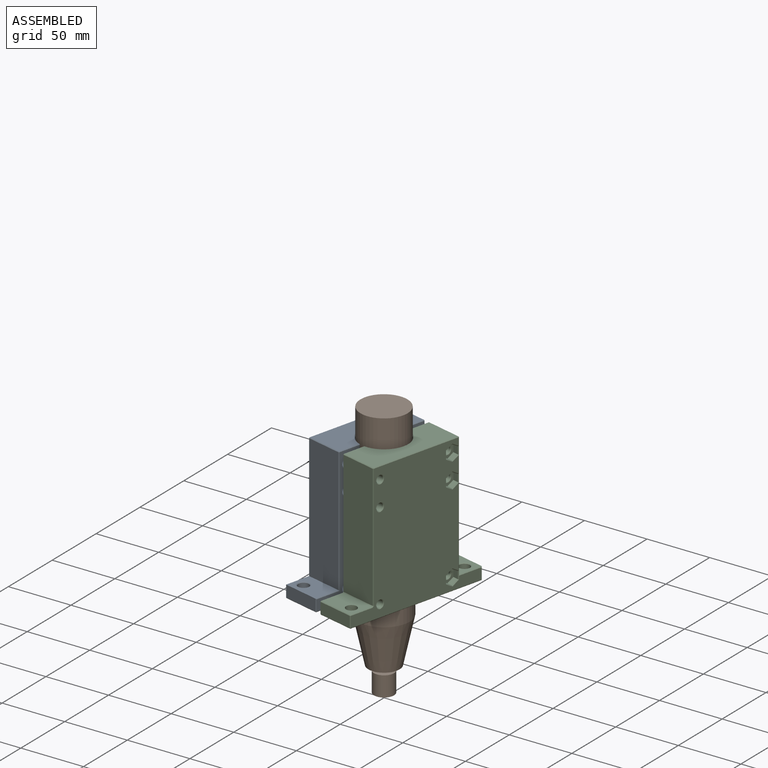
[diagram: assembled view]
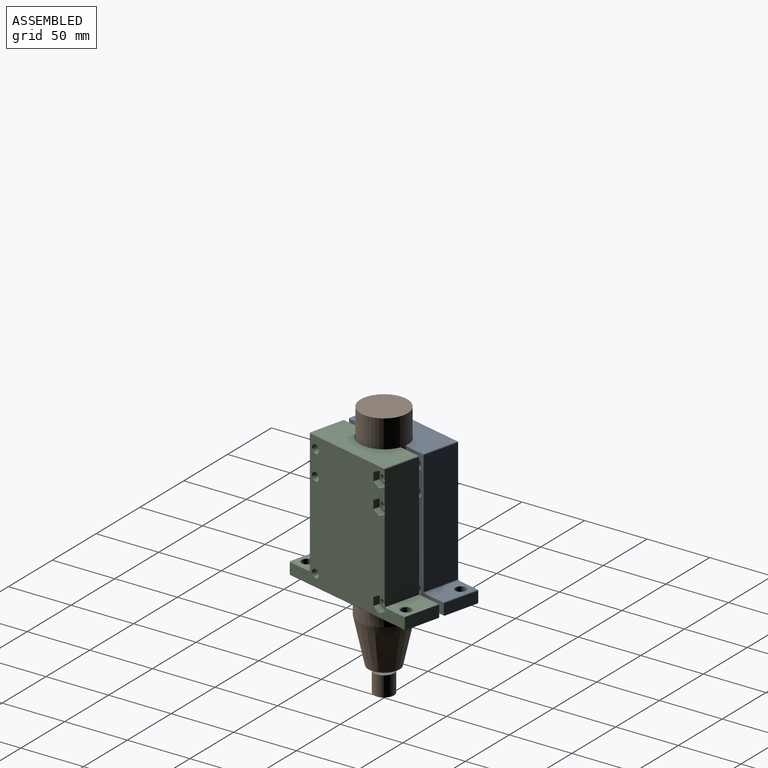
[diagram: assembled view, second angle]
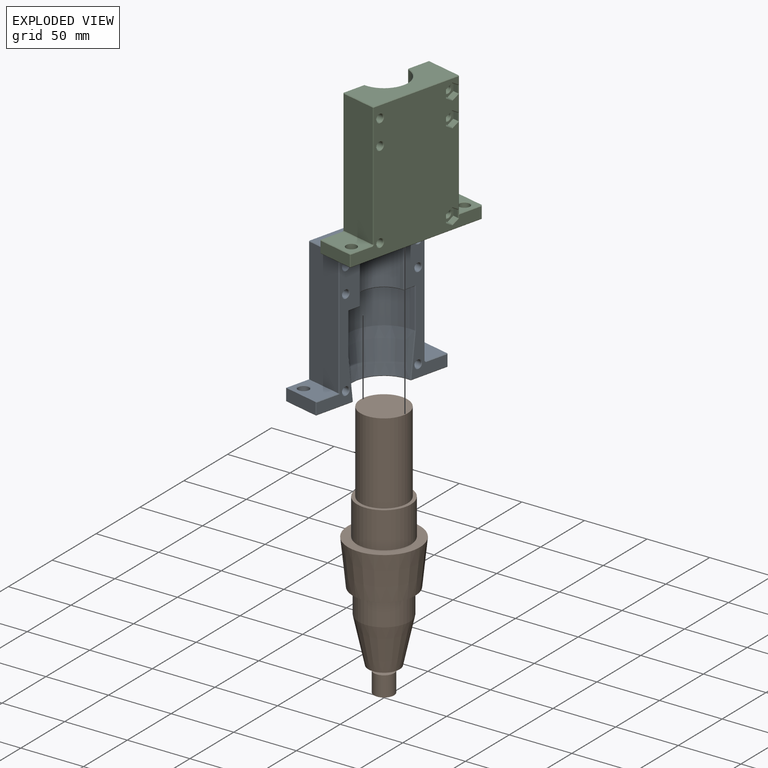
[diagram: exploded view]
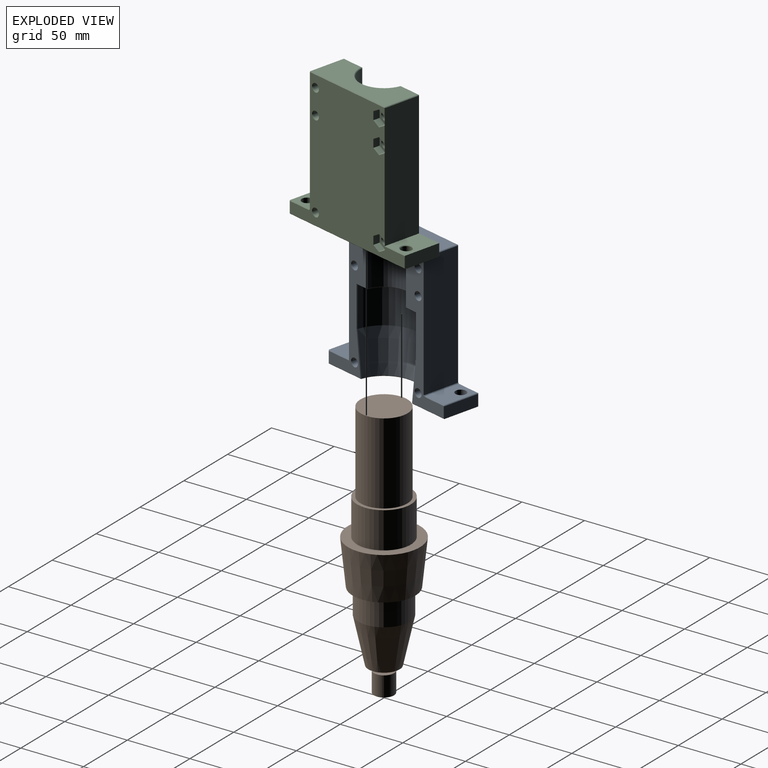
[diagram: exploded view, second angle]
ASSEMBLY  parts=3 mates=5
PART A: 130 faces, bbox 111.2x115x30 mm
  f0: plane 109x37.66mm, normal (0,0,1), area 1389.5mm2, adj f75,f76,f83,f89,f90,f99,f100,f105
  f1: plane 99.5x29mm, normal (0,1,0), area 2885.5mm2, adj f43,f80,f93,f94
  f2: plane 99x29mm, normal (0,-1,0), area 2871mm2, adj f73,f74,f88,f89
  f3: plane 114x109mm, normal (0,0,-1), area 7988.6mm2, adj f45,f46,f47,f48,f49,f51,f52,f53
  f4: cylinder r=2.9mm len=24mm, axis (0,0,1), area 436.7mm2, adj f117,f124
  f5: cylinder r=2.9mm len=24mm, axis (0,0,1), area 436.7mm2, adj f116,f125
  f6: cylinder r=2.9mm len=24mm, axis (0,0,1), area 436.7mm2, adj f115,f126
  f7: plane 74x29mm, normal (1,0,0), area 1645.9mm2, adj f81,f88,f94,f99,f102,f103
  f8: plane 114x29mm, normal (-1,0,0), area 2254.3mm2, adj f52,f77,f78,f90,f91,f92,f119,f120
  f9: plane 109x37.66mm, normal (0,0,1), area 1389mm2, adj f79,f86,f92,f93,f101,f102,f106,f110
  f10: cone r=29mm half-angle=6.3deg, axis (1,0,0), area 2778.1mm2, adj f11,f91,f100,f101
  f11: cylinder r=29mm len=57.79mm, axis (1,0,0), area 2758mm2, adj f10,f12,f105,f106,f109,f110
  f12: plane 57.78x26.5mm, normal (-1,0,0), area 676.2mm2, adj f11,f109,f110,f114
  f13: cylinder r=19mm len=42mm, axis (1,0,0), area 2301.8mm2, adj f103,f108,f111,f114
  f14: cylinder r=2.9mm len=29mm, axis (0,0,1), area 527.6mm2, adj f123,f129
  f15: cylinder r=2.9mm len=29mm, axis (0,0,1), area 527.6mm2, adj f121,f127
  f16: cylinder r=2.9mm len=29mm, axis (0,0,1), area 527.6mm2, adj f122,f128
  f17: plane 11.89x10.3mm, normal (0,0,-1), area 55.7mm2, adj f18,f19,f20,f21,f22,f23,f115
  f18: plane 5.15x4.5mm, normal (-0.87,0.5,0), area 26.8mm2, adj f17,f19,f23,f59
  f19: plane 5.95x4.5mm, normal (0,1,0), area 26.8mm2, adj f17,f18,f20,f48
  f20: plane 5.15x4.5mm, normal (0.87,0.5,0), area 26.8mm2, adj f17,f19,f21,f58
  f21: plane 5.15x4.5mm, normal (0.87,-0.5,0), area 26.8mm2, adj f17,f20,f22,f70
  f22: plane 5.95x4.5mm, normal (0,-1,0), area 26.8mm2, adj f17,f21,f23,f71
  f23: plane 5.15x4.5mm, normal (-0.87,-0.5,0), area 26.8mm2, adj f17,f18,f22,f72
  f24: plane 11.89x10.3mm, normal (0,0,-1), area 55.7mm2, adj f25,f26,f27,f28,f29,f30,f116
  f25: plane 5.15x4.5mm, normal (0.87,0.5,0), area 26.8mm2, adj f24,f26,f30,f56
  f26: plane 5.15x4.5mm, normal (0.87,-0.5,0), area 26.8mm2, adj f24,f25,f27,f67
  f27: plane 5.95x4.5mm, normal (0,-1,0), area 26.8mm2, adj f24,f26,f28,f68
  f28: plane 5.15x4.5mm, normal (-0.87,-0.5,0), area 26.8mm2, adj f24,f27,f29,f69
  f29: plane 5.15x4.5mm, normal (-0.87,0.5,0), area 26.8mm2, adj f24,f28,f30,f57
  f30: plane 5.95x4.5mm, normal (0,1,0), area 26.8mm2, adj f24,f25,f29,f47
  f31: plane 11.89x10.3mm, normal (0,0,-1), area 55.7mm2, adj f32,f33,f34,f35,f36,f37,f117
  f32: plane 5.15x4.5mm, normal (0.87,0.5,0), area 26.8mm2, adj f31,f33,f37,f45
  f33: plane 5.15x4.5mm, normal (0.87,-0.5,0), area 26.8mm2, adj f31,f32,f34,f54
  f34: plane 5.95x4.5mm, normal (0,-1,0), area 26.8mm2, adj f31,f33,f35,f65
  f35: plane 5.15x4.5mm, normal (-0.87,-0.5,0), area 26.8mm2, adj f31,f34,f36,f66
  f36: plane 5.15x4.5mm, normal (-0.87,0.5,0), area 26.8mm2, adj f31,f35,f37,f55
  f37: plane 5.95x4.5mm, normal (0,1,0), area 26.8mm2, adj f31,f32,f36,f46
  f38: plane 29x9mm, normal (0,-1,0), area 261mm2, adj f50,f51,f76,f77
  f39: cylinder r=4.3mm len=9.5mm, axis (-1,0,0), area 256.7mm2, adj f40,f120
  f40: plane 29x19mm, normal (1,0,0), area 492.9mm2, adj f39,f49,f50,f74,f75
  f41: plane 29x9.5mm, normal (0,1,0), area 275.5mm2, adj f43,f53,f78,f79
  f42: cylinder r=4.3mm len=9mm, axis (-1,0,0), area 243.2mm2, adj f118,f119
  f43: plane 29x20mm, normal (1,0,0), area 507.6mm2, adj f1,f41,f64,f86,f118
  f44: plane 0.5x0.5mm, normal (0.58,-0.58,-0.58), area 0.2mm2, adj f49,f50,f51
  f45: plane 5.65x3.55mm, normal (0.61,0.35,-0.71), area 4.4mm2, adj f3,f32,f46,f54
  f46: plane 6.52x0.5mm, normal (0,0.71,-0.71), area 4.4mm2, adj f3,f37,f45,f55
  f47: plane 6.52x0.5mm, normal (0,0.71,-0.71), area 4.4mm2, adj f3,f30,f56,f57
  f48: plane 6.52x0.5mm, normal (0,0.71,-0.71), area 4.4mm2, adj f3,f19,f58,f59
  f49: plane 19x0.5mm, normal (0.71,0,-0.71), area 13.4mm2, adj f3,f40,f44,f60
  f50: plane 29x0.5mm, normal (0.71,-0.71,0), area 20.5mm2, adj f38,f40,f44,f61
  f51: plane 9x0.5mm, normal (0,-0.71,-0.71), area 6.4mm2, adj f3,f38,f44,f62
  f52: plane 114x0.5mm, normal (-0.71,0,-0.71), area 80.6mm2, adj f3,f8,f62,f63
  f53: plane 9.5x0.5mm, normal (0,0.71,-0.71), area 6.5mm2, adj f3,f41,f63,f64
  f54: plane 5.65x3.55mm, normal (0.61,-0.35,-0.71), area 4.4mm2, adj f3,f33,f45,f65
  f55: plane 5.65x3.55mm, normal (-0.61,0.35,-0.71), area 4.4mm2, adj f3,f36,f46,f66
  f56: plane 5.65x3.55mm, normal (0.61,0.35,-0.71), area 4.4mm2, adj f3,f25,f47,f67
  f57: plane 5.65x3.55mm, normal (-0.61,0.35,-0.71), area 4.4mm2, adj f3,f29,f47,f69
  f58: plane 5.65x3.55mm, normal (0.61,0.35,-0.71), area 4.4mm2, adj f3,f20,f48,f70
  f59: plane 5.65x3.55mm, normal (-0.61,0.35,-0.71), area 4.4mm2, adj f3,f18,f48,f72
  f60: plane 1x1mm, normal (0.58,-0.58,-0.58), area 0.6mm2, adj f3,f49,f73,f74
  f61: plane 0.5x0.5mm, normal (0.58,-0.58,0.58), area 0.2mm2, adj f50,f75,f76
  f62: plane 0.5x0.5mm, normal (-0.58,-0.58,-0.58), area 0.2mm2, adj f51,f52,f77
  f63: plane 0.5x0.5mm, normal (-0.58,0.58,-0.58), area 0.2mm2, adj f52,f53,f78
  f64: plane 20.43x0.5mm, normal (0.71,0,-0.71), area 14.1mm2, adj f3,f43,f53,f65,f80
  f65: plane 6.48x0.5mm, normal (0,-0.71,-0.71), area 4mm2, adj f3,f34,f54,f64,f66,f80
  f66: plane 5.58x3.55mm, normal (-0.61,-0.35,-0.71), area 4.4mm2, adj f3,f35,f55,f65,f80
  f67: plane 5.58x3.55mm, normal (0.61,-0.35,-0.71), area 4.4mm2, adj f3,f26,f56,f68,f80
  f68: plane 6.44x0.43mm, normal (0,-0.71,-0.71), area 3.7mm2, adj f27,f67,f69,f80
  f69: plane 5.58x3.55mm, normal (-0.61,-0.35,-0.71), area 4.4mm2, adj f3,f28,f57,f68,f80
  f70: plane 5.58x3.55mm, normal (0.61,-0.35,-0.71), area 4.4mm2, adj f3,f21,f58,f71,f80
  f71: plane 6.44x0.43mm, normal (0,-0.71,-0.71), area 3.7mm2, adj f22,f70,f72,f80
  f72: plane 5.58x3.55mm, normal (-0.61,-0.35,-0.71), area 4.4mm2, adj f3,f23,f59,f71,f80
  f73: plane 99x0.5mm, normal (0,-0.71,-0.71), area 70mm2, adj f2,f3,f60,f82
  f74: plane 29x0.5mm, normal (0.71,-0.71,0), area 20.5mm2, adj f2,f40,f60,f83
  f75: plane 19x0.5mm, normal (0.71,0,0.71), area 13.4mm2, adj f0,f40,f61,f83
  f76: plane 9x0.5mm, normal (0,-0.71,0.71), area 6.4mm2, adj f0,f38,f61,f84
  f77: plane 29x0.5mm, normal (-0.71,-0.71,0), area 20.5mm2, adj f8,f38,f62,f84
  f78: plane 29x0.5mm, normal (-0.71,0.71,0), area 20.5mm2, adj f8,f41,f63,f85
  f79: plane 9.5x0.5mm, normal (0,0.71,0.71), area 6.5mm2, adj f9,f41,f85,f86
  f80: plane 99.93x0.5mm, normal (0,0.71,-0.71), area 68.7mm2, adj f1,f3,f64,f65,f66,f67,f68,f69
  f81: plane 74x0.5mm, normal (0.71,0,-0.71), area 52.3mm2, adj f3,f7,f82,f87
  f82: plane 0.5x0.5mm, normal (0.58,-0.58,-0.58), area 0.2mm2, adj f73,f81,f88
  f83: plane 1x1mm, normal (0.58,-0.58,0.58), area 0.6mm2, adj f0,f74,f75,f89
  f84: plane 0.5x0.5mm, normal (-0.58,-0.58,0.58), area 0.2mm2, adj f76,f77,f90
  f85: plane 0.5x0.5mm, normal (-0.58,0.58,0.58), area 0.2mm2, adj f78,f79,f92
  f86: plane 20.5x0.5mm, normal (0.71,0,0.71), area 14.1mm2, adj f9,f43,f79,f93
  f87: plane 0.5x0.5mm, normal (0.58,0.58,-0.58), area 0.2mm2, adj f80,f81,f94
  f88: plane 29x0.5mm, normal (0.71,-0.71,0), area 20.5mm2, adj f2,f7,f82,f95
  f89: plane 99x0.5mm, normal (0,-0.71,0.71), area 70mm2, adj f0,f2,f83,f95
  f90: plane 31.45x0.5mm, normal (-0.71,0,0.71), area 22.2mm2, adj f0,f8,f84,f96
  f91: cone r=25.17mm half-angle=41.8deg, axis (-1,0,0), area 55.8mm2, adj f8,f10,f96,f97
  f92: plane 31.45x0.5mm, normal (-0.71,0,0.71), area 22.2mm2, adj f8,f9,f85,f97
  f93: plane 100x0.5mm, normal (0,0.71,0.71), area 70.5mm2, adj f1,f9,f86,f98
  f94: plane 29x0.5mm, normal (0.71,0.71,0), area 20.5mm2, adj f1,f7,f87,f98
  f95: plane 0.5x0.5mm, normal (0.58,-0.58,0.58), area 0.2mm2, adj f88,f89,f99
  f96: plane 0.56x0.5mm, normal (-0.57,0.59,0.57), area 0.2mm2, adj f90,f91,f100
  f97: plane 0.56x0.5mm, normal (-0.57,-0.59,0.57), area 0.2mm2, adj f91,f92,f101
  f98: plane 0.5x0.5mm, normal (0.58,0.58,0.58), area 0.2mm2, adj f93,f94,f102
  f99: plane 17.66x0.5mm, normal (0.71,0,0.71), area 12.5mm2, adj f0,f7,f95,f104
  f100: bspline ~37.97x4.73mm, area 23.4mm2, adj f0,f10,f96,f105
  f101: bspline ~37.97x4.73mm, area 23.4mm2, adj f9,f10,f97,f106
  f102: plane 17.66x0.5mm, normal (0.71,0,0.71), area 12.5mm2, adj f7,f9,f98,f107
  f103: cone r=19mm half-angle=45deg, axis (1,0,0), area 39.3mm2, adj f7,f13,f104,f107
  f104: plane 0.5x0.5mm, normal (0.6,0.53,0.6), area 0.2mm2, adj f99,f103,f108
  f105: plane 32.53x0.5mm, normal (0,0.68,0.74), area 21.8mm2, adj f0,f11,f100,f109
  f106: plane 32.53x0.5mm, normal (0,-0.68,0.74), area 21.8mm2, adj f9,f11,f101,f110
  f107: plane 0.5x0.5mm, normal (0.6,-0.53,0.6), area 0.2mm2, adj f102,f103,f111
  f108: plane 42x0.5mm, normal (0,0.66,0.75), area 27.7mm2, adj f0,f13,f104,f112
  f109: plane 10.05x0.5mm, normal (-0.71,0,0.71), area 6.9mm2, adj f0,f11,f12,f105,f112
  f110: plane 10.05x0.5mm, normal (-0.71,0,0.71), area 6.9mm2, adj f9,f11,f12,f106,f113
  f111: plane 42x0.5mm, normal (0,-0.66,0.75), area 27.7mm2, adj f9,f13,f107,f113
  f112: plane 0.5x0.5mm, normal (-0.6,0.53,0.6), area 0.2mm2, adj f108,f109,f114
  f113: plane 0.5x0.5mm, normal (-0.6,-0.53,0.6), area 0.2mm2, adj f110,f111,f114
  f114: cone r=19.5mm half-angle=45deg, axis (-1,0,0), area 39.3mm2, adj f12,f13,f112,f113
  f115: cone r=3.4mm half-angle=45deg, axis (0,0,-1), area 14mm2, adj f6,f17
  f116: cone r=3.4mm half-angle=45deg, axis (0,0,-1), area 14mm2, adj f5,f24
  f117: cone r=3.4mm half-angle=45deg, axis (0,0,-1), area 14mm2, adj f4,f31
  f118: cone r=4.3mm half-angle=45deg, axis (1,0,0), area 20.2mm2, adj f42,f43
  f119: cone r=4.8mm half-angle=45deg, axis (-1,0,0), area 20.2mm2, adj f8,f42
  f120: cone r=4.3mm half-angle=45deg, axis (-1,0,0), area 20.2mm2, adj f8,f39
  f121: cone r=3.4mm half-angle=45deg, axis (0,0,1), area 14mm2, adj f0,f15
  f122: cone r=3.4mm half-angle=45deg, axis (0,0,1), area 14mm2, adj f0,f16
  f123: cone r=3.4mm half-angle=45deg, axis (0,0,1), area 14mm2, adj f0,f14
  f124: cone r=2.9mm half-angle=45deg, axis (0,0,1), area 14mm2, adj f4,f9
  f125: cone r=2.9mm half-angle=45deg, axis (0,0,1), area 14mm2, adj f5,f9
  f126: cone r=2.9mm half-angle=45deg, axis (0,0,1), area 14mm2, adj f6,f9
  f127: cone r=2.9mm half-angle=45deg, axis (0,0,-1), area 14mm2, adj f3,f15
  f128: cone r=2.9mm half-angle=45deg, axis (0,0,-1), area 14mm2, adj f3,f16
  f129: cone r=2.9mm half-angle=45deg, axis (0,0,-1), area 14mm2, adj f3,f14
PART B: 14 faces, bbox 206.5x57.5x57.5 mm
  f0: plane 37.6x37.6mm, normal (1,0,0), area 1110.4mm2, adj f1
  f1: cylinder r=18.8mm len=65mm, axis (1,0,0), area 7678.1mm2, adj f0,f2
  f2: plane 43x43mm, normal (1,0,0), area 341.8mm2, adj f1,f3
  f3: cylinder r=21.5mm len=43mm, axis (1,0,0), area 3917.6mm2, adj f2,f4
  f4: plane 57.5x57.5mm, normal (1,0,0), area 1144.5mm2, adj f3,f5
  f5: cone r=25mm half-angle=5.9deg, axis (1,0,0), area 6111.9mm2, adj f4,f6
  f6: plane 50x50mm, normal (-1,0,0), area 643.2mm2, adj f5,f7
  f7: cylinder r=20.5mm len=41mm, axis (1,0,0), area 2576.1mm2, adj f6,f8
  f8: cone r=12.5mm half-angle=12.4deg, axis (1,0,0), area 3873.9mm2, adj f7,f9
  f9: plane 25x25mm, normal (-1,0,0), area 471.2mm2, adj f8,f10
  f10: cylinder r=2.5mm len=5mm, axis (1,0,0), area 62.8mm2, adj f9,f11
  f11: plane 16x16mm, normal (1,0,0), area 181.4mm2, adj f10,f12
  f12: cylinder r=8mm len=16mm, axis (1,0,0), area 804.2mm2, adj f11,f13
  f13: plane 16x16mm, normal (-1,0,0), area 201.1mm2, adj f12
PART C: same geometry as A
PLACE A rot(axis=(0.7,-0.08,0.7),170.3deg) t=(-31.09,7.58,-12)mm
PLACE B rot(axis=(0,-1,0),90deg) t=(0,0,65)mm
PLACE C rot(axis=(-0.12,-0.99,-0.12),90.8deg) t=(31.09,-7.58,-12)mm
MATE cylindrical A.f10 <-> B.f1  axis (0,0,1) through (0,0,21.5)mm
MATE cylindrical B.f1 <-> C.f10  axis (0,0,1) through (0,0,32.5)mm
MATE parallel C.f0 <-> A.f6  axis (-0.97,0.24,0) through (-5.68,-31.75,-11.02)mm
MATE planar C.f12 <-> B.f1  axis (0,0,-1) through (-3.28,-24.02,0)mm
MATE planar A.f12 <-> B.f1  axis (0,0,-1) through (-7.01,-18.2,0)mm
